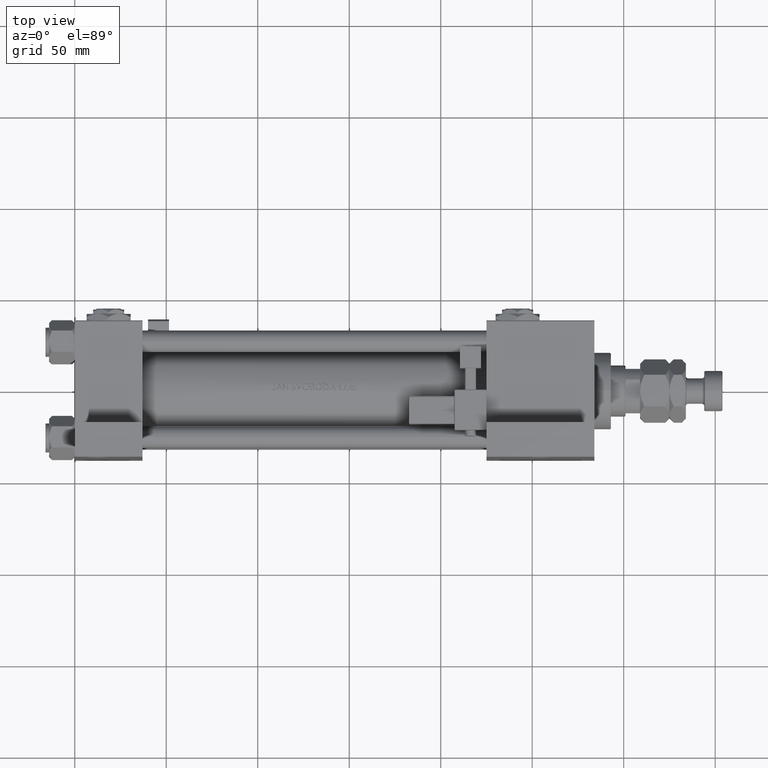
[diagram: clean part render]
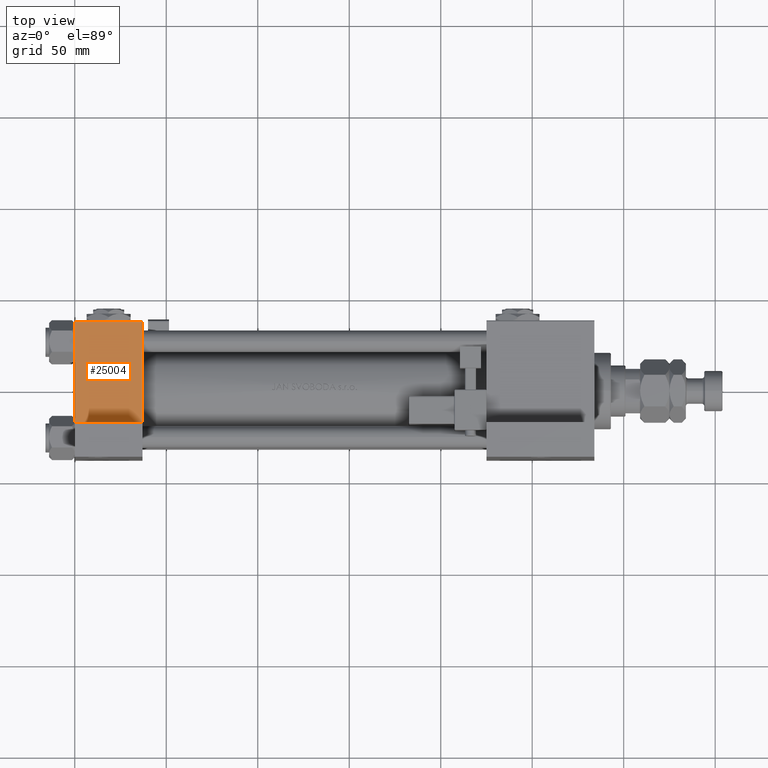
[diagram: same view with one face highlighted and labeled with its STEP entity id]
A machine part, top view. The second image highlights one B-rep face of the part: STEP entity #25004.
In plain terms, the highlighted planar face has unit normal (0, 0, -1).
Its self-contained STEP definition (entity closure, byte-faithful):
#2640 = VECTOR ( 'NONE', #47580, 1000.000000000000000 ) ;
#3580 = LINE ( 'NONE', #27085, #30421 ) ;
#3894 = EDGE_LOOP ( 'NONE', ( #31935, #37557, #30485, #49383 ) ) ;
#5212 = DIRECTION ( 'NONE',  ( 0.000000000000000000, -9.251858538542971581E-17, 1.000000000000000000 ) ) ;
#6913 = LINE ( 'NONE', #35517, #2640 ) ;
#10939 = DIRECTION ( 'NONE',  ( -1.000000000000000000, 0.000000000000000000, 0.000000000000000000 ) ) ;
#11756 = DIRECTION ( 'NONE',  ( 0.000000000000000000, 9.251858538542971581E-17, -1.000000000000000000 ) ) ;
#13227 = DIRECTION ( 'NONE',  ( -0.000000000000000000, 1.000000000000000000, 9.251858538542971581E-17 ) ) ;
#14060 = VERTEX_POINT ( 'NONE', #21253 ) ;
#17240 = CARTESIAN_POINT ( 'NONE',  ( 37.00000000000000000, -37.50000000000000711, 37.49999999999999289 ) ) ;
#20015 = CARTESIAN_POINT ( 'NONE',  ( 37.00000000000000000, -37.50000000000000711, 36.99999999999999289 ) ) ;
#20874 = VERTEX_POINT ( 'NONE', #20928 ) ;
#20928 = CARTESIAN_POINT ( 'NONE',  ( 0.000000000000000000, -37.50000000000000711, 36.99999999999999289 ) ) ;
#21253 = CARTESIAN_POINT ( 'NONE',  ( 37.00000000000000000, -37.50000000000000711, 36.99999999999999289 ) ) ;
#24702 = EDGE_CURVE ( 'NONE', #20874, #42441, #3580, .T. ) ;
#24743 = CARTESIAN_POINT ( 'NONE',  ( 37.00000000000000000, -37.50000000000000000, -18.50000000000000355 ) ) ;
#25004 = ADVANCED_FACE ( 'NONE', ( #33024 ), #45356, .F. ) ;
#26501 = VECTOR ( 'NONE', #11756, 1000.000000000000000 ) ;
#27085 = CARTESIAN_POINT ( 'NONE',  ( 0.000000000000000000, -37.50000000000000711, 37.49999999999999289 ) ) ;
#28706 = AXIS2_PLACEMENT_3D ( 'NONE', #17240, #13227, #5212 ) ;
#30421 = VECTOR ( 'NONE', #47721, 1000.000000000000000 ) ;
#30485 = ORIENTED_EDGE ( 'NONE', *, *, #42235, .T. ) ;
#31935 = ORIENTED_EDGE ( 'NONE', *, *, #40411, .F. ) ;
#32063 = LINE ( 'NONE', #48418, #26501 ) ;
#33024 = FACE_OUTER_BOUND ( 'NONE', #3894, .T. ) ;
#35517 = CARTESIAN_POINT ( 'NONE',  ( -7.145701223179000102E-16, -37.50000000000001421, -18.49999999999999645 ) ) ;
#36828 = VECTOR ( 'NONE', #10939, 1000.000000000000000 ) ;
#37317 = EDGE_CURVE ( 'NONE', #14060, #37764, #32063, .T. ) ;
#37557 = ORIENTED_EDGE ( 'NONE', *, *, #37317, .F. ) ;
#37764 = VERTEX_POINT ( 'NONE', #24743 ) ;
#38698 = CARTESIAN_POINT ( 'NONE',  ( -7.145701223179004046E-16, -37.50000000000000711, -18.50000000000000355 ) ) ;
#40359 = LINE ( 'NONE', #20015, #36828 ) ;
#40411 = EDGE_CURVE ( 'NONE', #37764, #42441, #6913, .T. ) ;
#42235 = EDGE_CURVE ( 'NONE', #14060, #20874, #40359, .T. ) ;
#42441 = VERTEX_POINT ( 'NONE', #38698 ) ;
#45356 = PLANE ( 'NONE',  #28706 ) ;
#47580 = DIRECTION ( 'NONE',  ( -1.000000000000000000, 0.000000000000000000, 0.000000000000000000 ) ) ;
#47721 = DIRECTION ( 'NONE',  ( 0.000000000000000000, 9.251858538542971581E-17, -1.000000000000000000 ) ) ;
#48418 = CARTESIAN_POINT ( 'NONE',  ( 37.00000000000000000, -37.50000000000000711, 37.49999999999999289 ) ) ;
#49383 = ORIENTED_EDGE ( 'NONE', *, *, #24702, .T. ) ;